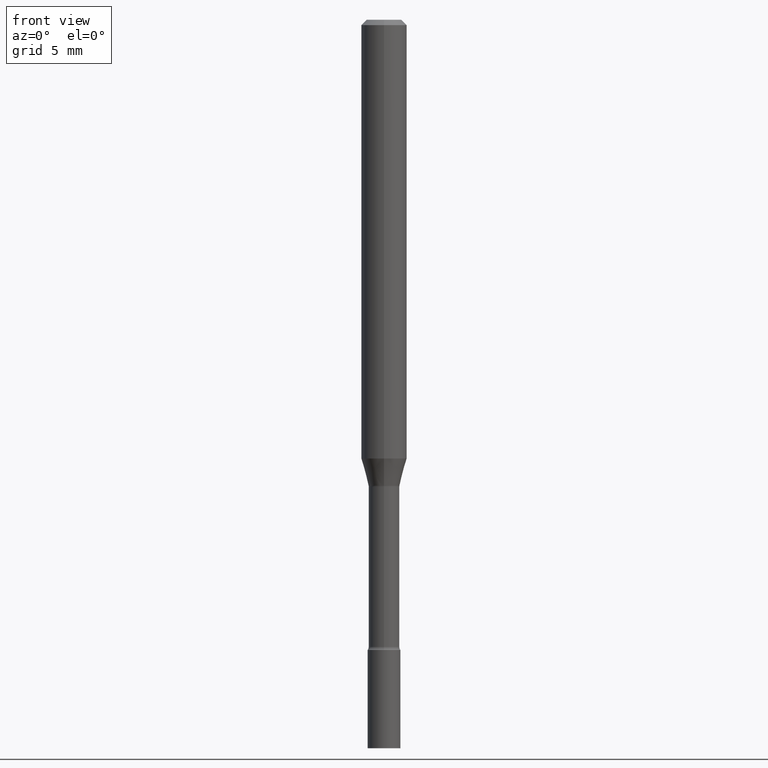
[diagram: clean part render]
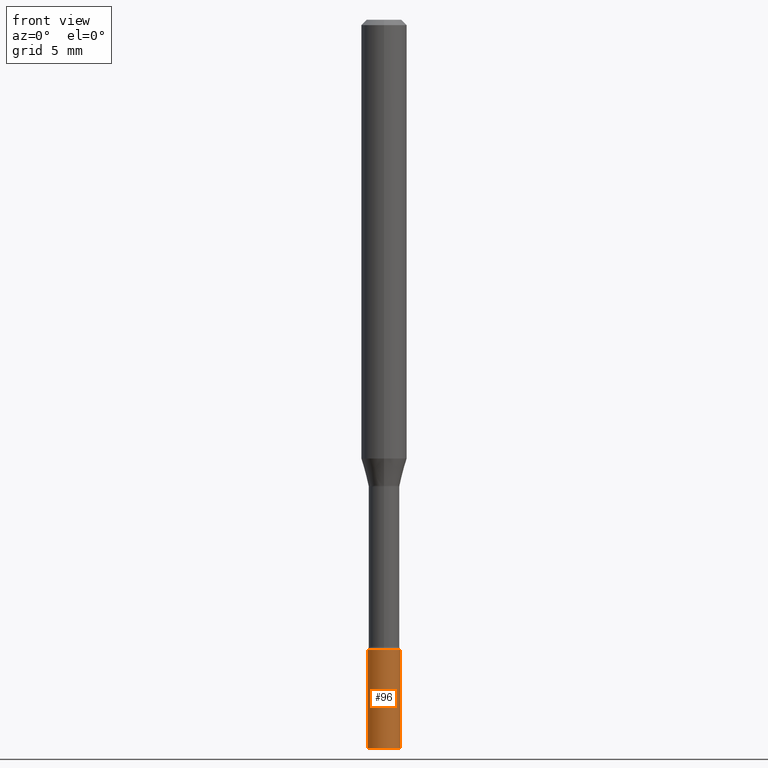
[diagram: same view with one face highlighted and labeled with its STEP entity id]
A machine part, front view. The second image highlights one B-rep face of the part: STEP entity #96.
In plain terms, the highlighted cylindrical surface (edge-blend (fillet) strip) has radius 1.143 mm, axis along (-0, 0, 1).
Its self-contained STEP definition (entity closure, byte-faithful):
#13 = AXIS2_PLACEMENT_3D ( 'NONE', #154, #389, #132 ) ;
#33 = CARTESIAN_POINT ( 'NONE',  ( 4.890937612370273194E-29, -6.982962677686291165E-15, -2.000000000000000000 ) ) ;
#35 = DIRECTION ( 'NONE',  ( 1.000000000000000000, -6.982962677686269077E-15, 0.000000000000000000 ) ) ;
#36 = CARTESIAN_POINT ( 'NONE',  ( 0.04499999999999999833, -7.297195998182173641E-15, -2.000000000000000000 ) ) ;
#70 = VERTEX_POINT ( 'NONE', #468 ) ;
#74 = CIRCLE ( 'NONE', #488, 0.04499999999999999833 ) ;
#96 = ADVANCED_FACE ( 'NONE', ( #429 ), #448, .T. ) ;
#97 = EDGE_CURVE ( 'NONE', #337, #484, #74, .T. ) ;
#102 = ORIENTED_EDGE ( 'NONE', *, *, #379, .F. ) ;
#124 = DIRECTION ( 'NONE',  ( -2.445468806185136597E-29, 3.491481338843145583E-15, 1.000000000000000000 ) ) ;
#132 = DIRECTION ( 'NONE',  ( 1.000000000000000000, -6.982962677686266711E-15, 4.876176775795935793E-29 ) ) ;
#150 = ORIENTED_EDGE ( 'NONE', *, *, #304, .F. ) ;
#154 = CARTESIAN_POINT ( 'NONE',  ( 0.000000000000000000, 0.000000000000000000, 0.000000000000000000 ) ) ;
#160 = CARTESIAN_POINT ( 'NONE',  ( 4.230661034700285954E-29, -6.040262716198641373E-15, -1.729999999999999760 ) ) ;
#166 = ORIENTED_EDGE ( 'NONE', *, *, #97, .T. ) ;
#185 = CARTESIAN_POINT ( 'NONE',  ( 0.04499999999999999833, -6.354496036694523059E-15, -1.729999999999999760 ) ) ;
#204 = CARTESIAN_POINT ( 'NONE',  ( -0.04499999999999999833, 3.197442310920450718E-16, -2.213520790614707560E-30 ) ) ;
#252 = LINE ( 'NONE', #204, #449 ) ;
#257 = DIRECTION ( 'NONE',  ( 1.000000000000000000, -6.982962677686269077E-15, 0.000000000000000000 ) ) ;
#289 = CARTESIAN_POINT ( 'NONE',  ( -0.04499999999999999833, -6.191868465850420113E-15, -2.000000000000000000 ) ) ;
#291 = DIRECTION ( 'NONE',  ( -2.445468806185136597E-29, 3.491481338843145583E-15, 1.000000000000000000 ) ) ;
#304 = EDGE_CURVE ( 'NONE', #70, #430, #482, .T. ) ;
#327 = DIRECTION ( 'NONE',  ( -2.445468806185136877E-29, 3.491481338843145188E-15, 1.000000000000000000 ) ) ;
#337 = VERTEX_POINT ( 'NONE', #289 ) ;
#373 = EDGE_LOOP ( 'NONE', ( #102, #166, #382, #150 ) ) ;
#379 = EDGE_CURVE ( 'NONE', #337, #70, #252, .T. ) ;
#382 = ORIENTED_EDGE ( 'NONE', *, *, #394, .T. ) ;
#389 = DIRECTION ( 'NONE',  ( -2.445468806185136597E-29, 3.491481338843145583E-15, 1.000000000000000000 ) ) ;
#394 = EDGE_CURVE ( 'NONE', #484, #430, #479, .T. ) ;
#429 = FACE_OUTER_BOUND ( 'NONE', #373, .T. ) ;
#430 = VERTEX_POINT ( 'NONE', #185 ) ;
#434 = DIRECTION ( 'NONE',  ( -2.445468806185136877E-29, 3.491481338843145188E-15, 1.000000000000000000 ) ) ;
#437 = CARTESIAN_POINT ( 'NONE',  ( 0.04499999999999999833, -3.142333204958819823E-16, 2.194279549108170967E-30 ) ) ;
#448 = CYLINDRICAL_SURFACE ( 'NONE', #13, 0.04499999999999999833 ) ;
#449 = VECTOR ( 'NONE', #327, 39.37007874015748143 ) ;
#468 = CARTESIAN_POINT ( 'NONE',  ( -0.04499999999999999833, -6.191868465850420113E-15, -1.729999999999999760 ) ) ;
#479 = LINE ( 'NONE', #437, #489 ) ;
#482 = CIRCLE ( 'NONE', #515, 0.04499999999999999833 ) ;
#484 = VERTEX_POINT ( 'NONE', #36 ) ;
#488 = AXIS2_PLACEMENT_3D ( 'NONE', #33, #291, #257 ) ;
#489 = VECTOR ( 'NONE', #434, 39.37007874015748143 ) ;
#515 = AXIS2_PLACEMENT_3D ( 'NONE', #160, #124, #35 ) ;